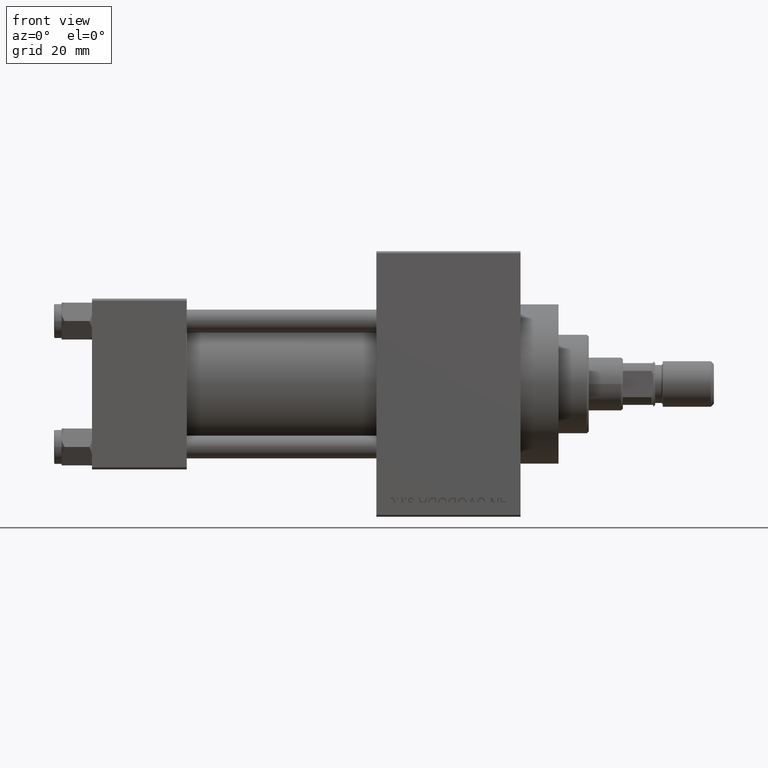
[diagram: clean part render]
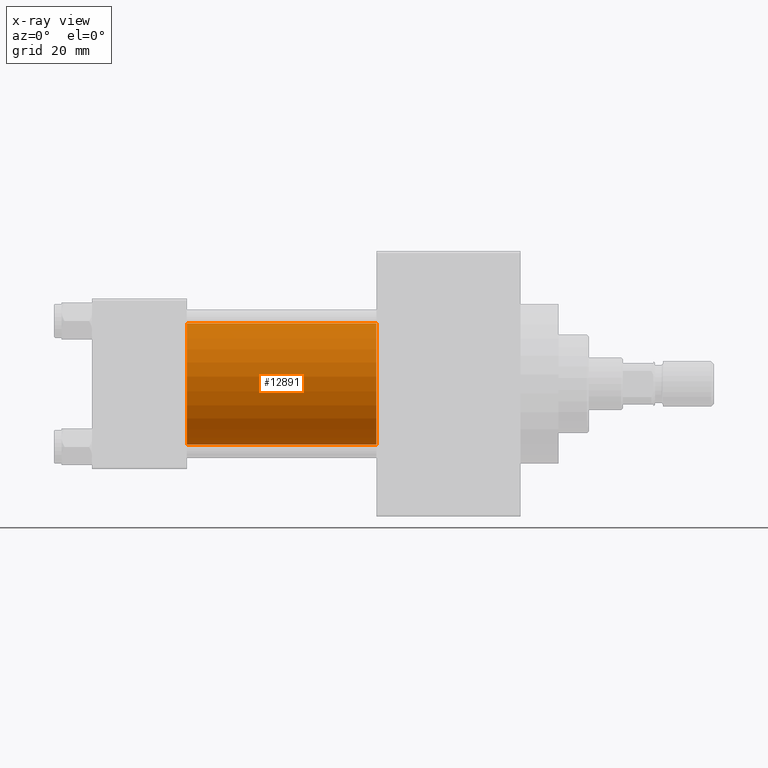
[diagram: x-ray — body ghosted, one internal face saturated and labeled with its STEP entity id]
A machine part, front view, then the same camera in x-ray: the body is ghosted and one INTERNAL B-rep face — a face not visible from any outside direction — is saturated and labeled: STEP entity #12891.
In plain terms, the highlighted cylindrical surface (partial cylindrical patch) has radius 16 mm, axis along (-1, -0, -0).
Its self-contained STEP definition (entity closure, byte-faithful):
#1237 = DIRECTION ( 'NONE',  ( -1.000000000000000000, -0.000000000000000000, -0.000000000000000000 ) ) ;
#4145 = VECTOR ( 'NONE', #41937, 1000.000000000000000 ) ;
#4402 = EDGE_CURVE ( 'NONE', #45118, #6373, #23221, .T. ) ;
#4571 = CARTESIAN_POINT ( 'NONE',  ( 25.00000000000000000, -2.602085213965210642E-15, 0.000000000000000000 ) ) ;
#5549 = EDGE_CURVE ( 'NONE', #45118, #31987, #12077, .T. ) ;
#6373 = VERTEX_POINT ( 'NONE', #39575 ) ;
#10391 = DIRECTION ( 'NONE',  ( 1.000000000000000000, 0.000000000000000000, 0.000000000000000000 ) ) ;
#10734 = CIRCLE ( 'NONE', #46144, 16.00000000000000000 ) ;
#10777 = CARTESIAN_POINT ( 'NONE',  ( 75.00000000000001421, -2.602085213965210642E-15, 16.00000000000000000 ) ) ;
#12077 = LINE ( 'NONE', #12314, #4145 ) ;
#12314 = CARTESIAN_POINT ( 'NONE',  ( 75.00000000000001421, -2.602085213965210642E-15, 16.00000000000000000 ) ) ;
#12891 = ADVANCED_FACE ( 'NONE', ( #41454 ), #27235, .F. ) ;
#15665 = DIRECTION ( 'NONE',  ( 1.000000000000000000, 0.000000000000000000, 0.000000000000000000 ) ) ;
#17625 = CARTESIAN_POINT ( 'NONE',  ( 25.00000000000000000, -2.602085213965210642E-15, 16.00000000000000000 ) ) ;
#20124 = AXIS2_PLACEMENT_3D ( 'NONE', #40013, #10391, #25088 ) ;
#20898 = VERTEX_POINT ( 'NONE', #34315 ) ;
#22442 = EDGE_CURVE ( 'NONE', #31987, #20898, #10734, .T. ) ;
#23221 = CIRCLE ( 'NONE', #20124, 16.00000000000000000 ) ;
#25088 = DIRECTION ( 'NONE',  ( 0.000000000000000000, 0.000000000000000000, -1.000000000000000000 ) ) ;
#27173 = ORIENTED_EDGE ( 'NONE', *, *, #4402, .T. ) ;
#27235 = CYLINDRICAL_SURFACE ( 'NONE', #34309, 16.00000000000000000 ) ;
#27829 = DIRECTION ( 'NONE',  ( -1.000000000000000000, -0.000000000000000000, -0.000000000000000000 ) ) ;
#28459 = VECTOR ( 'NONE', #27829, 1000.000000000000000 ) ;
#30362 = DIRECTION ( 'NONE',  ( 0.000000000000000000, 0.000000000000000000, -1.000000000000000000 ) ) ;
#31440 = CARTESIAN_POINT ( 'NONE',  ( 75.00000000000001421, -6.426503353294456087E-16, -16.00000000000000000 ) ) ;
#31987 = VERTEX_POINT ( 'NONE', #17625 ) ;
#33593 = EDGE_LOOP ( 'NONE', ( #27173, #37259, #34179, #41854 ) ) ;
#34179 = ORIENTED_EDGE ( 'NONE', *, *, #22442, .F. ) ;
#34232 = CARTESIAN_POINT ( 'NONE',  ( 75.00000000000001421, -2.602085213965210642E-15, 0.000000000000000000 ) ) ;
#34309 = AXIS2_PLACEMENT_3D ( 'NONE', #34232, #1237, #45297 ) ;
#34315 = CARTESIAN_POINT ( 'NONE',  ( 25.00000000000000000, -6.426503353294456087E-16, -16.00000000000000000 ) ) ;
#35358 = EDGE_CURVE ( 'NONE', #6373, #20898, #42517, .T. ) ;
#37259 = ORIENTED_EDGE ( 'NONE', *, *, #35358, .T. ) ;
#39575 = CARTESIAN_POINT ( 'NONE',  ( 75.00000000000001421, -6.426503353294456087E-16, -16.00000000000000000 ) ) ;
#40013 = CARTESIAN_POINT ( 'NONE',  ( 75.00000000000001421, -2.602085213965210642E-15, 0.000000000000000000 ) ) ;
#41454 = FACE_OUTER_BOUND ( 'NONE', #33593, .T. ) ;
#41854 = ORIENTED_EDGE ( 'NONE', *, *, #5549, .F. ) ;
#41937 = DIRECTION ( 'NONE',  ( -1.000000000000000000, -0.000000000000000000, -0.000000000000000000 ) ) ;
#42517 = LINE ( 'NONE', #31440, #28459 ) ;
#45118 = VERTEX_POINT ( 'NONE', #10777 ) ;
#45297 = DIRECTION ( 'NONE',  ( 0.000000000000000000, 0.000000000000000000, 1.000000000000000000 ) ) ;
#46144 = AXIS2_PLACEMENT_3D ( 'NONE', #4571, #15665, #30362 ) ;